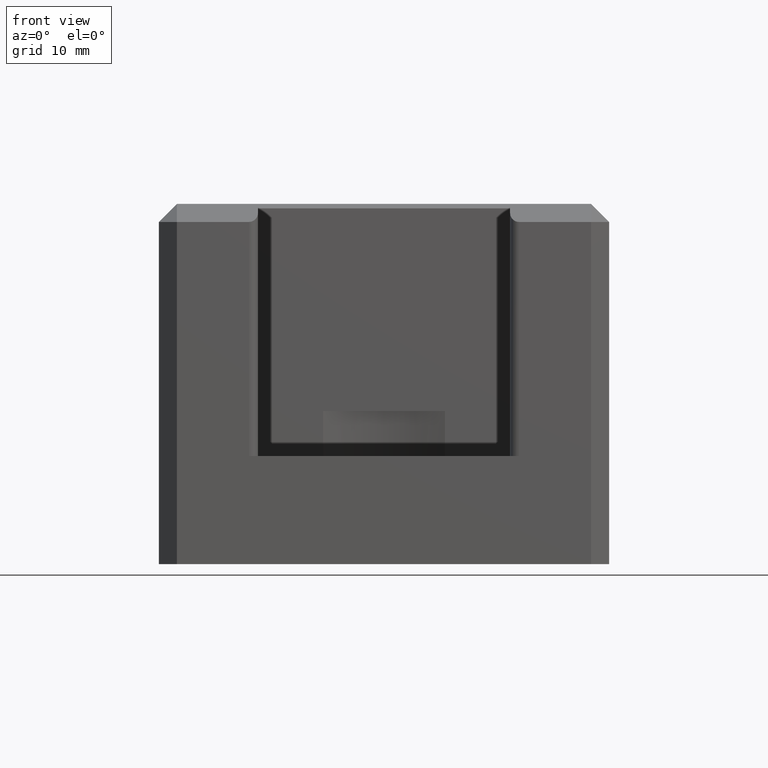
[diagram: clean part render]
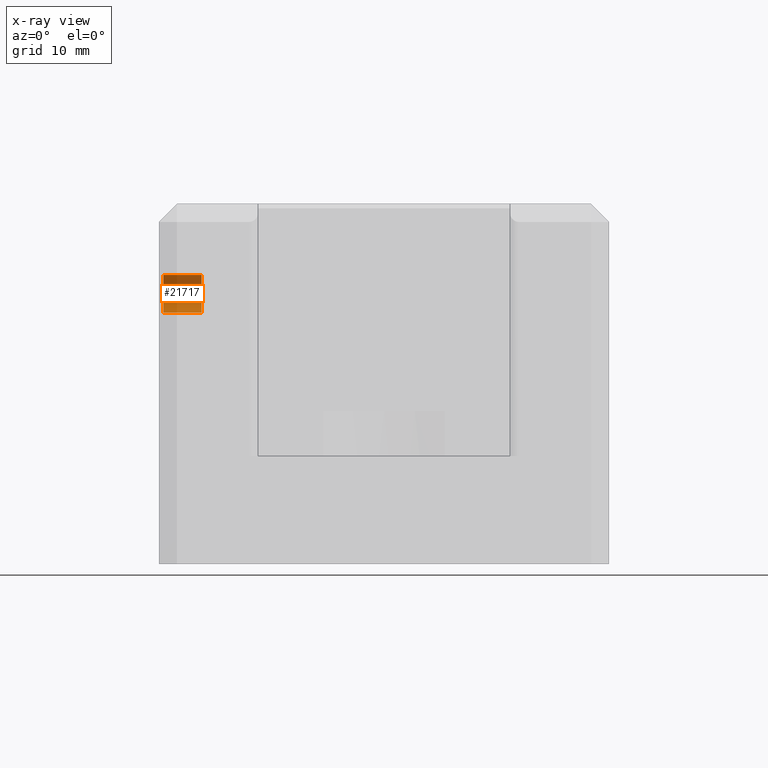
[diagram: x-ray — body ghosted, one internal face saturated and labeled with its STEP entity id]
A machine part, front view, then the same camera in x-ray: the body is ghosted and one INTERNAL B-rep face — a face not visible from any outside direction — is saturated and labeled: STEP entity #21717.
In plain terms, the highlighted cylindrical surface (edge-blend (fillet) strip) has radius 2.1 mm, axis along (-1, -0, -0).
Its self-contained STEP definition (entity closure, byte-faithful):
#212 = CARTESIAN_POINT ( 'NONE',  ( -25.00000000000000400, -3.469446951953615000E-015, 10.00000000000000000 ) ) ;
#886 = VECTOR ( 'NONE', #2212, 1000.000000000000000 ) ;
#1725 = EDGE_LOOP ( 'NONE', ( #12299, #26157, #23684, #17754 ) ) ;
#1885 = LINE ( 'NONE', #24936, #886 ) ;
#2212 = DIRECTION ( 'NONE',  ( -1.000000000000000000, -0.0000000000000000000, -0.0000000000000000000 ) ) ;
#2823 = VERTEX_POINT ( 'NONE', #25516 ) ;
#3118 = CIRCLE ( 'NONE', #8813, 2.099999999999990800 ) ;
#3917 = EDGE_CURVE ( 'NONE', #18821, #9150, #7247, .T. ) ;
#4329 = CYLINDRICAL_SURFACE ( 'NONE', #13982, 2.099999999999990800 ) ;
#4710 = CARTESIAN_POINT ( 'NONE',  ( -24.50000000000001100, -3.469446951953615000E-015, 10.00000000000000000 ) ) ;
#6366 = DIRECTION ( 'NONE',  ( 0.0000000000000000000, -1.000000000000000000, 0.0000000000000000000 ) ) ;
#6626 = CARTESIAN_POINT ( 'NONE',  ( -20.25000000000000400, -3.469446951953615000E-015, 10.00000000000000000 ) ) ;
#6634 = VERTEX_POINT ( 'NONE', #8288 ) ;
#7247 = CIRCLE ( 'NONE', #22823, 2.099999999999990800 ) ;
#7753 = CARTESIAN_POINT ( 'NONE',  ( -25.00000000000000400, -3.469446951953615000E-015, 12.09999999999999100 ) ) ;
#8259 = EDGE_CURVE ( 'NONE', #9150, #6634, #1885, .T. ) ;
#8288 = CARTESIAN_POINT ( 'NONE',  ( -24.50000000000001100, -3.212271124132672100E-015, 7.900000000000009200 ) ) ;
#8813 = AXIS2_PLACEMENT_3D ( 'NONE', #4710, #23093, #21217 ) ;
#9150 = VERTEX_POINT ( 'NONE', #13721 ) ;
#12299 = ORIENTED_EDGE ( 'NONE', *, *, #8259, .F. ) ;
#13721 = CARTESIAN_POINT ( 'NONE',  ( -20.25000000000000400, -3.212271124132672100E-015, 7.900000000000009200 ) ) ;
#13982 = AXIS2_PLACEMENT_3D ( 'NONE', #212, #22854, #25093 ) ;
#14351 = FACE_OUTER_BOUND ( 'NONE', #1725, .T. ) ;
#16746 = DIRECTION ( 'NONE',  ( -1.000000000000000000, -8.566535683836084200E-017, -0.0000000000000000000 ) ) ;
#17754 = ORIENTED_EDGE ( 'NONE', *, *, #20900, .T. ) ;
#18020 = DIRECTION ( 'NONE',  ( -1.000000000000000000, -0.0000000000000000000, -0.0000000000000000000 ) ) ;
#18821 = VERTEX_POINT ( 'NONE', #25799 ) ;
#20004 = EDGE_CURVE ( 'NONE', #18821, #2823, #21533, .T. ) ;
#20900 = EDGE_CURVE ( 'NONE', #2823, #6634, #3118, .T. ) ;
#21217 = DIRECTION ( 'NONE',  ( 0.0000000000000000000, 0.0000000000000000000, -1.000000000000000000 ) ) ;
#21499 = VECTOR ( 'NONE', #18020, 1000.000000000000000 ) ;
#21533 = LINE ( 'NONE', #7753, #21499 ) ;
#21717 = ADVANCED_FACE ( 'NONE', ( #14351 ), #4329, .F. ) ;
#22823 = AXIS2_PLACEMENT_3D ( 'NONE', #6626, #16746, #6366 ) ;
#22854 = DIRECTION ( 'NONE',  ( -1.000000000000000000, -0.0000000000000000000, -0.0000000000000000000 ) ) ;
#23093 = DIRECTION ( 'NONE',  ( -1.000000000000000000, 0.0000000000000000000, 0.0000000000000000000 ) ) ;
#23684 = ORIENTED_EDGE ( 'NONE', *, *, #20004, .T. ) ;
#24936 = CARTESIAN_POINT ( 'NONE',  ( -25.00000000000000400, -3.212271124132672100E-015, 7.900000000000009200 ) ) ;
#25093 = DIRECTION ( 'NONE',  ( 0.0000000000000000000, 0.0000000000000000000, 1.000000000000000000 ) ) ;
#25516 = CARTESIAN_POINT ( 'NONE',  ( -24.50000000000001100, -3.469446951953615000E-015, 12.09999999999999100 ) ) ;
#25799 = CARTESIAN_POINT ( 'NONE',  ( -20.25000000000000400, -3.469446951953615000E-015, 12.09999999999999100 ) ) ;
#26157 = ORIENTED_EDGE ( 'NONE', *, *, #3917, .F. ) ;